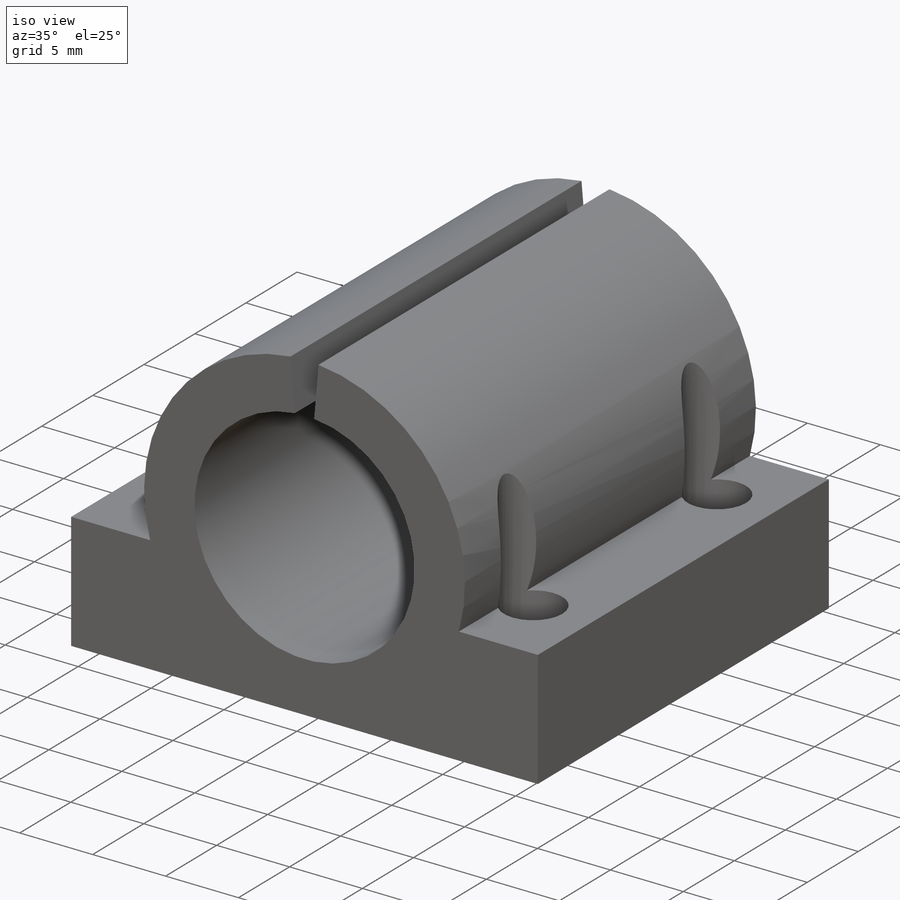
[diagram: iso view]
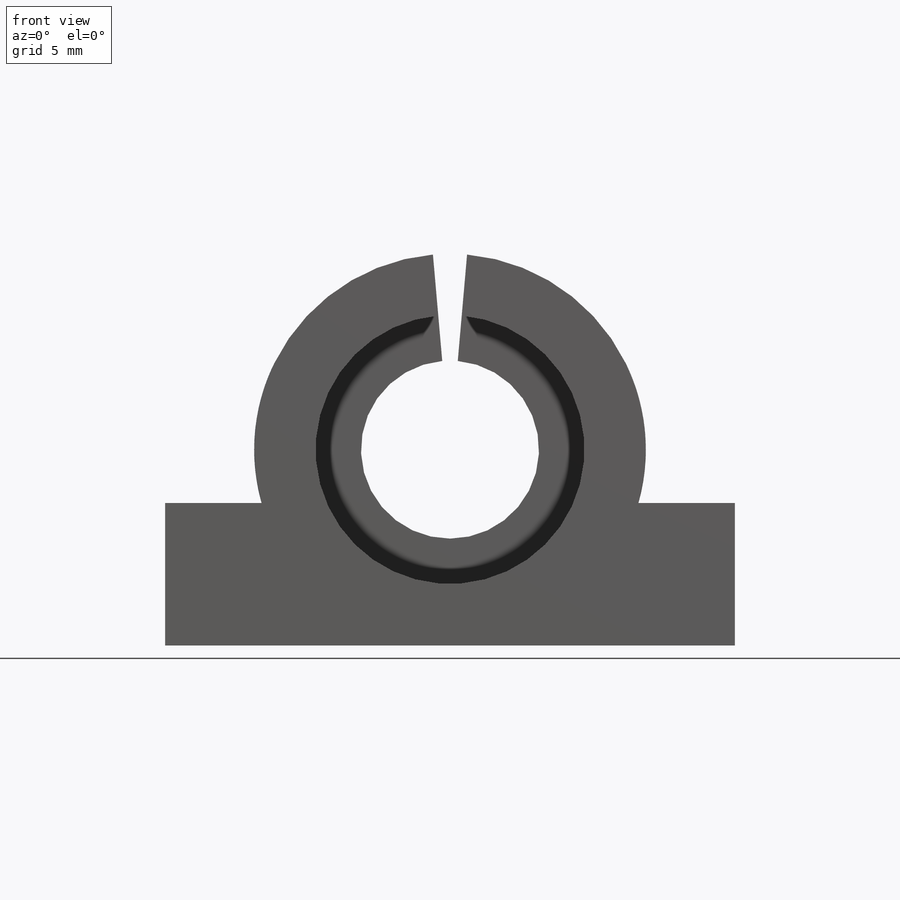
[diagram: front view]
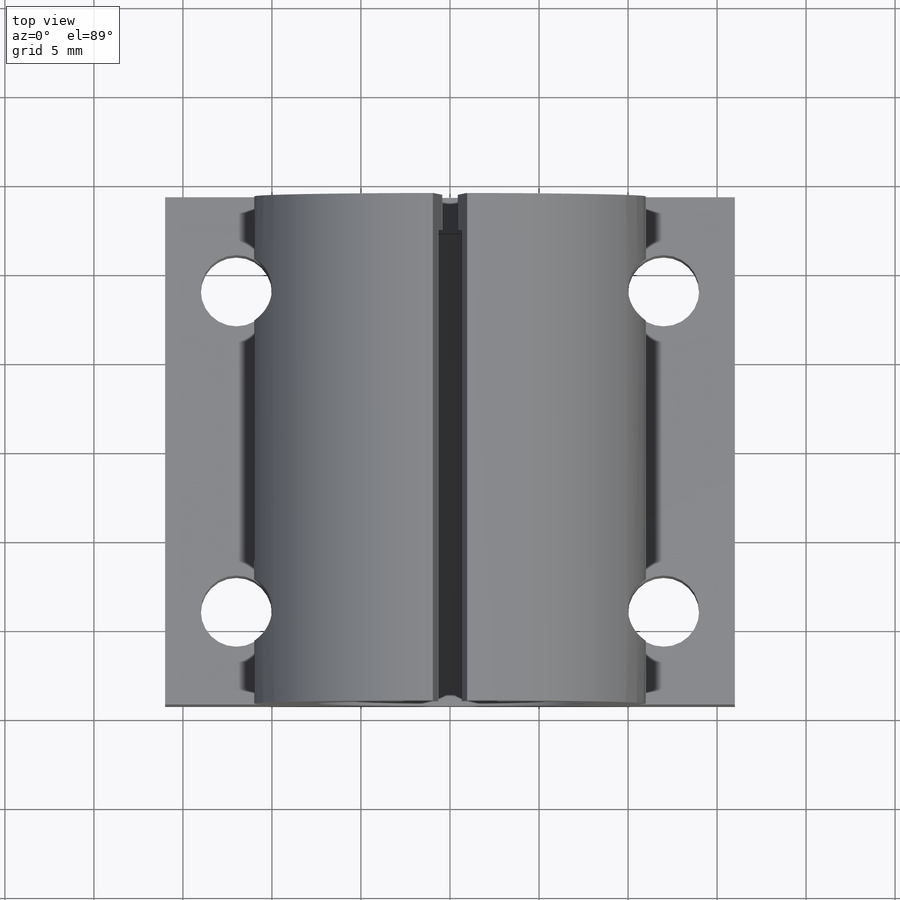
[diagram: top view]
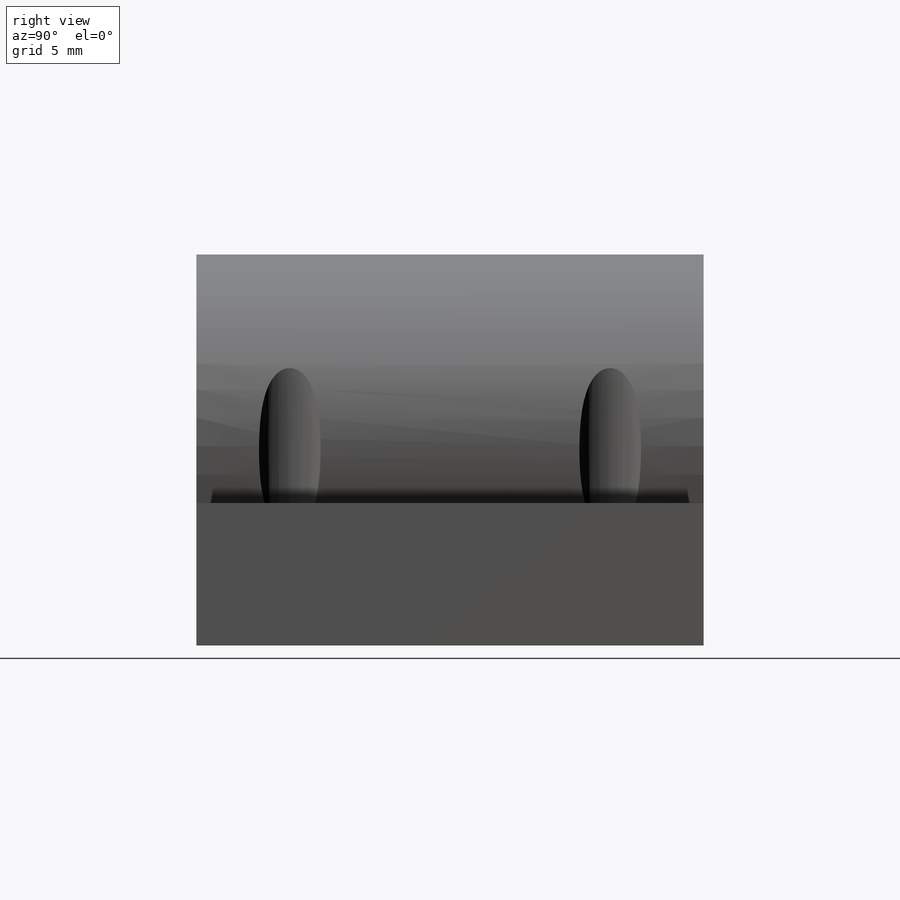
[diagram: right view]
SOLIDWORKS PART (.sldprt)
format: sldprt  version: not decoded by parser v0  size: 284,160 bytes
history: native  units: mm
features: sketch x7, cut_extrude x5, extrude x2, material x1 (+12 scaffold rows collapsed)
feature tree (27):
  scaffold x12  (default folders/planes/origin — collapsed)
  material  "Material <not specified>"
  sketch  "Sketch1"  dims[D1=32.0mm D2=28.5mm]
  extrude  "Boss-Extrude1"  Depth=8mm
  sketch  "Sketch3"  dims[D1=22.0mm D2=11.0mm]
  extrude  "Boss-Extrude2"  [1 undecoded]
  sketch  "Sketch4"  dims[D1=15.1mm]
  cut_extrude  "Cut-Extrude2"  Depth=2mm
  sketch  "Sketch5"  dims[D1=10.0mm]
  cut_extrude  "Cut-Extrude3"  [1 undecoded]
  sketch  "Sketch2"  dims[c1.D1=4.0mm c1.D2=12.0mm c1.D3=9.0mm c2.D2=12.0mm c2.D4=18.0mm c2.D5=24.0mm c2.D6=24.0mm c2.D7=30.0mm c2.D8=18.0mm]
  cut_extrude  "Cut-Extrude1"  [1 undecoded]
  sketch  "Sketch6"  dims[D1=5.6mm]
  cut_extrude  "Cut-Extrude4"  Depth=2.2mm
  sketch  "Sketch7"  dims[c1.D1=~10.88426mm c2.D1=10.0deg c2.D2=~10.995265mm c3.D2=5.0deg c3.D3=~5.977168mm c3.D4=~5.977168mm]
  cut_extrude  "Cut-Extrude5"  [1 undecoded]
decode coverage: 10 of 14 modeling features carry decoded parameters
note: ~ marks probable driven/reference dimensions
note: 4 parameter values undecoded
summary: no parameter record found for 4 features
note: suppression state not decoded; provenance and decode notes live in map.json
